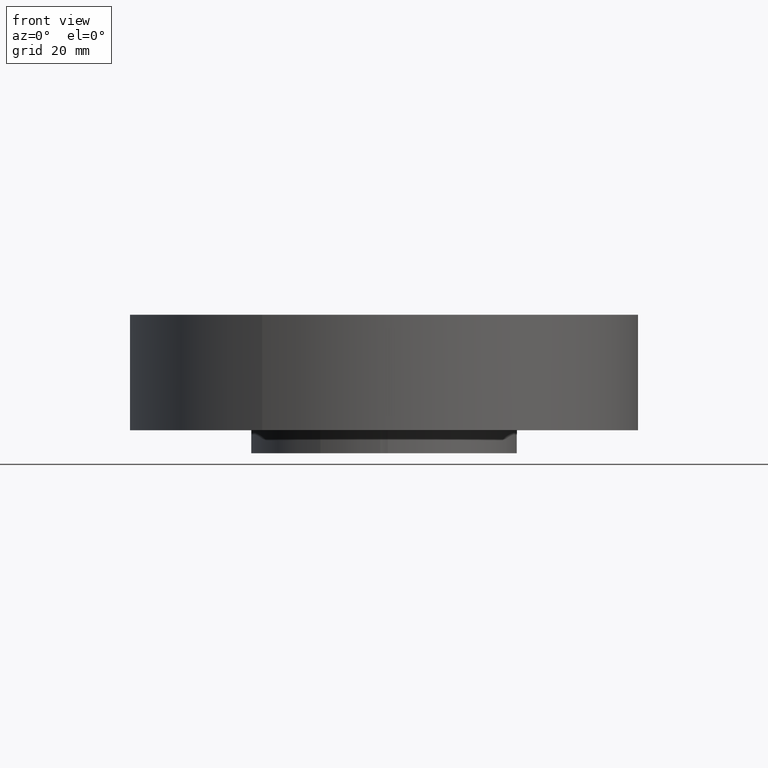
[diagram: clean part render]
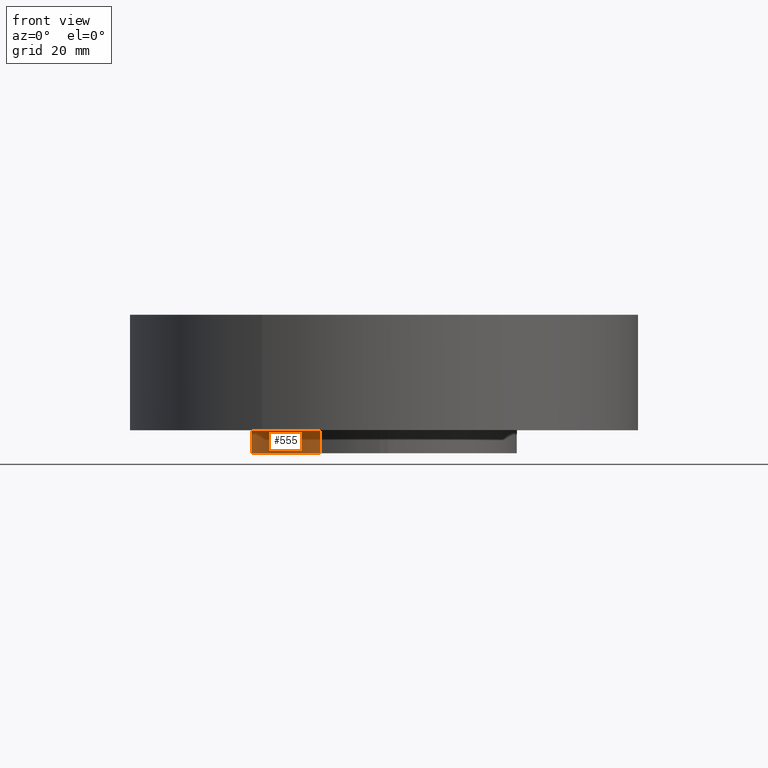
[diagram: same view with one face highlighted and labeled with its STEP entity id]
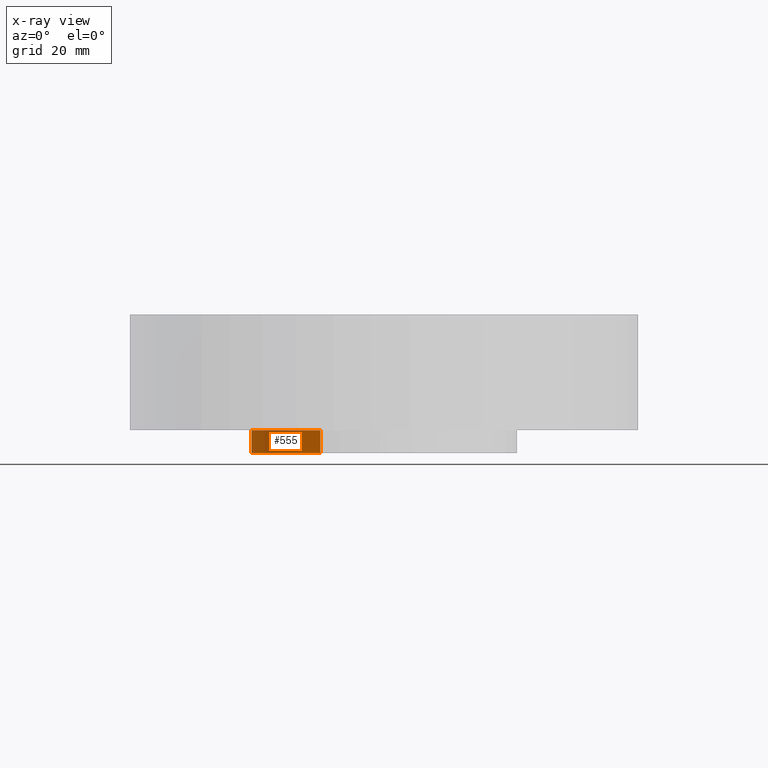
[diagram: x-ray of the same camera — body ghosted, the highlighted face saturated]
A machine part, front view. The second image highlights one B-rep face of the part: STEP entity #555.
The next image is the same camera in x-ray: the body ghosted, the highlighted face saturated — about 0% of this face is hidden behind the body in this view.
In plain terms, the highlighted cylindrical surface (partial cylindrical patch) has radius 36.5125 mm, axis along (0, 0, -1).
Its self-contained STEP definition (entity closure, byte-faithful):
#84=AXIS2_PLACEMENT_3D('Circle Axis2P3D',#82,#83,$) ;
#470=AXIS2_PLACEMENT_3D('Circle Axis2P3D',#468,#469,$) ;
#504=AXIS2_PLACEMENT_3D('Cylinder Axis2P3D',#501,#502,#503) ;
#79=CARTESIAN_POINT('Vertex',(-0.689174211746,-1.26152493272,-0.250000000001)) ;
#82=CARTESIAN_POINT('Axis2P3D Location',(0.,0.,-0.250000000001)) ;
#86=CARTESIAN_POINT('Vertex',(-1.43691500001,-0.0410064967415,-0.250000000001)) ;
#186=CARTESIAN_POINT('Line Origine',(-1.43691500001,-0.0410064967415,0.625000000003)) ;
#190=CARTESIAN_POINT('Vertex',(-1.43691500001,-0.0410064967415,1.39870617276E-016)) ;
#468=CARTESIAN_POINT('Axis2P3D Location',(0.,0.,0.)) ;
#472=CARTESIAN_POINT('Vertex',(-0.689174211746,-1.26152493272,1.39870617276E-016)) ;
#501=CARTESIAN_POINT('Axis2P3D Location',(0.,0.,0.500000000002)) ;
#518=CARTESIAN_POINT('Line Origine',(-0.689174211746,-1.26152493272,-0.125)) ;
#83=DIRECTION('Axis2P3D Direction',(0.,0.,-0.0393700787402)) ;
#187=DIRECTION('Vector Direction',(0.,0.,-0.0393700787402)) ;
#469=DIRECTION('Axis2P3D Direction',(0.,0.,-0.0393700787402)) ;
#502=DIRECTION('Axis2P3D Direction',(0.,0.,-0.0393700787402)) ;
#503=DIRECTION('Axis2P3D XDirection',(0.00112308104735,0.0393540568299,0.)) ;
#519=DIRECTION('Vector Direction',(0.,0.,-0.0393700787402)) ;
#188=VECTOR('Line Direction',#187,0.0393700787402) ;
#520=VECTOR('Line Direction',#519,0.0393700787402) ;
#550=ORIENTED_EDGE('',*,*,#88,.F.) ;
#551=ORIENTED_EDGE('',*,*,#522,.T.) ;
#552=ORIENTED_EDGE('',*,*,#474,.T.) ;
#553=ORIENTED_EDGE('',*,*,#192,.T.) ;
#555=ADVANCED_FACE('PartBody',(#554),#505,.T.) ;
#85=CIRCLE('generated circle',#84,1.43750000001) ;
#471=CIRCLE('generated circle',#470,1.43750000001) ;
#505=CYLINDRICAL_SURFACE('generated cylinder',#504,1.43750000001) ;
#88=EDGE_CURVE('',#80,#87,#85,.T.) ;
#192=EDGE_CURVE('',#191,#87,#189,.T.) ;
#474=EDGE_CURVE('',#473,#191,#471,.T.) ;
#522=EDGE_CURVE('',#80,#473,#521,.F.) ;
#549=EDGE_LOOP('',(#550,#551,#552,#553)) ;
#554=FACE_OUTER_BOUND('',#549,.T.) ;
#189=LINE('Line',#186,#188) ;
#521=LINE('Line',#518,#520) ;
#80=VERTEX_POINT('',#79) ;
#87=VERTEX_POINT('',#86) ;
#191=VERTEX_POINT('',#190) ;
#473=VERTEX_POINT('',#472) ;